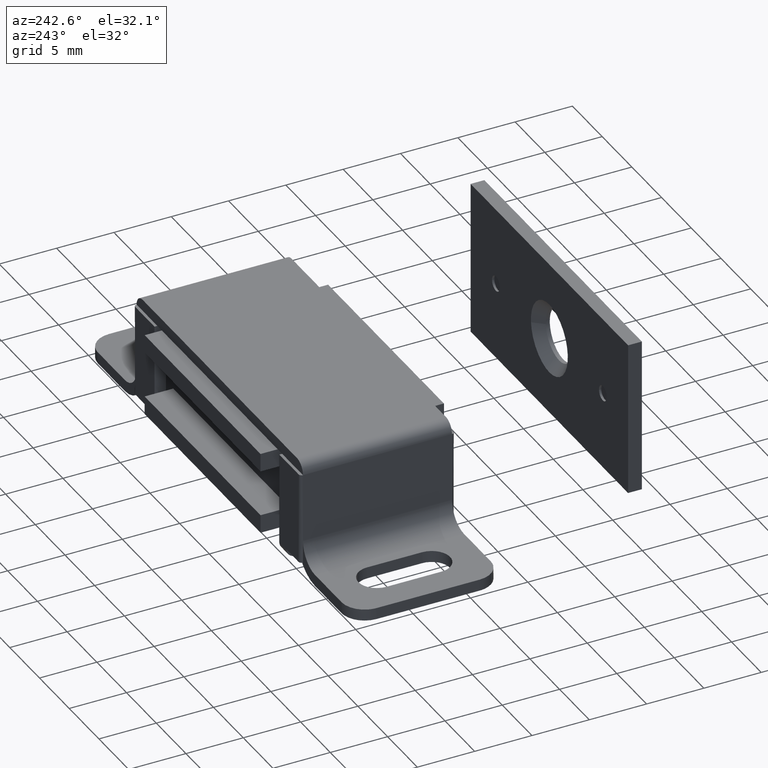
[diagram: clean part render]
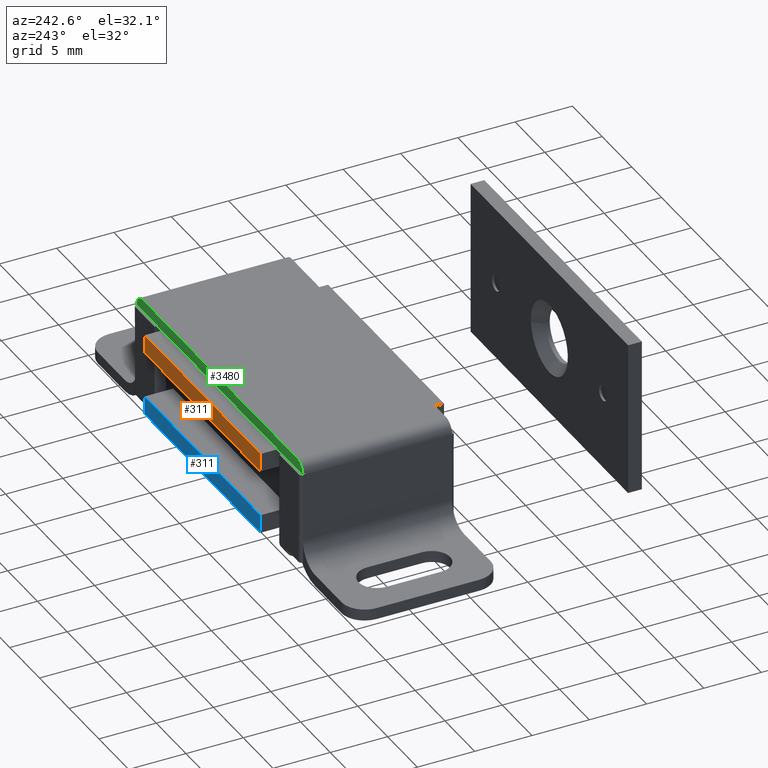
[diagram: same view with three faces highlighted in distinct colors, each labeled with its STEP entity id]
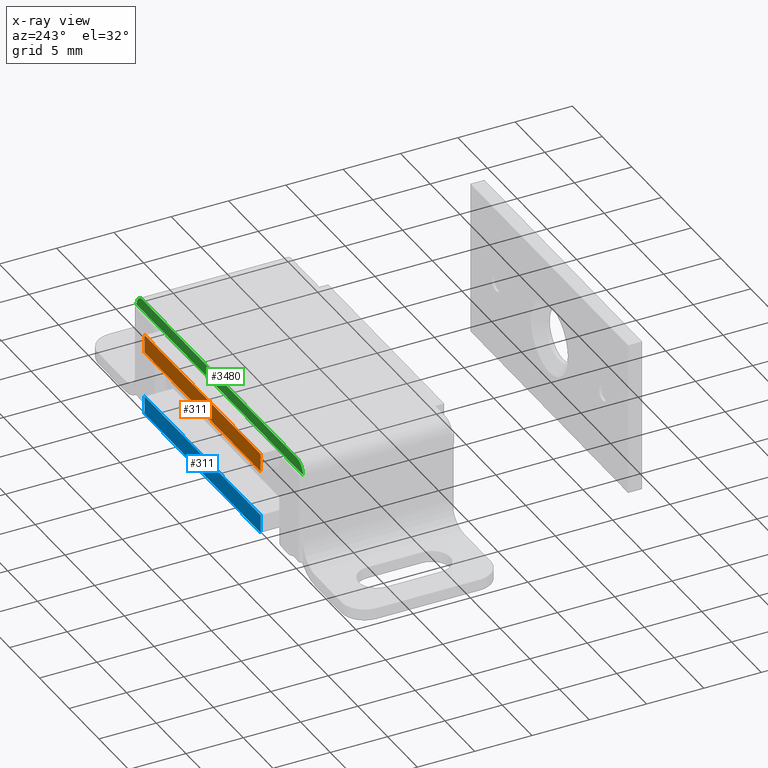
[diagram: x-ray of the same camera — body ghosted, the three highlighted faces saturated]
A machine part, auxiliary view with three faces highlighted in distinct colors.
The next image is the same camera in x-ray (body ghosted, the three faces saturated) — at least one of them is partly hidden behind the body in this view.
Their STEP definitions:

[orange] entity #311 — the highlighted face is a freeform B-spline surface patch.
#93=CARTESIAN_POINT('',(-9.750000000000000,8.0,1.800003000000050));
#94=VERTEX_POINT('',#93);
#100=CARTESIAN_POINT('',(9.750000000000000,8.0,1.800003000000050));
#101=VERTEX_POINT('',#100);
#102=CARTESIAN_POINT('',(-9.750000000000000,8.0,1.800003000000050));
#103=CARTESIAN_POINT('',(9.750000000000000,8.0,1.800003000000050));
#104=QUASI_UNIFORM_CURVE('',1,(#102,#103),.UNSPECIFIED.,.F.,.U.);
#105=EDGE_CURVE('',#94,#101,#104,.T.);
#171=CARTESIAN_POINT('',(9.750000000000000,8.0,3.400009000000035));
#172=VERTEX_POINT('',#171);
#178=CARTESIAN_POINT('',(-9.750000000000000,8.0,3.400009000000035));
#179=VERTEX_POINT('',#178);
#180=CARTESIAN_POINT('',(-9.750000000000000,8.0,3.400009000000035));
#181=CARTESIAN_POINT('',(9.750000000000000,8.0,3.400009000000035));
#182=QUASI_UNIFORM_CURVE('',1,(#180,#181),.UNSPECIFIED.,.F.,.U.);
#183=EDGE_CURVE('',#179,#172,#182,.T.);
#286=CARTESIAN_POINT('',(9.750000000000000,8.0,3.400009000000035));
#287=CARTESIAN_POINT('',(9.750000000000000,8.0,1.800003000000050));
#288=QUASI_UNIFORM_CURVE('',1,(#286,#287),.UNSPECIFIED.,.F.,.U.);
#289=EDGE_CURVE('',#172,#101,#288,.T.);
#296=CARTESIAN_POINT('',(-10.724024962205220,8.0,1.720082754176653));
#297=CARTESIAN_POINT('',(-10.724024962205220,8.0,3.479929217213096));
#298=CARTESIAN_POINT('',(10.724025485235970,8.0,1.720082754176653));
#299=CARTESIAN_POINT('',(10.724025485235970,8.0,3.479929217213096));
#300=B_SPLINE_SURFACE_WITH_KNOTS('',1,1,((#296,#298),(#297,#299)),.UNSPECIFIED.,.F.,.F.,.U.,(2,2),(2,2),(0.041708361393958,0.958291623704881),(0.0,21.448050447441190),.UNSPECIFIED.);
#301=ORIENTED_EDGE('',*,*,#105,.F.);
#302=CARTESIAN_POINT('',(-9.750000000000000,8.0,3.400009000000035));
#303=CARTESIAN_POINT('',(-9.750000000000000,8.0,1.800003000000050));
#304=QUASI_UNIFORM_CURVE('',1,(#302,#303),.UNSPECIFIED.,.F.,.U.);
#305=EDGE_CURVE('',#179,#94,#304,.T.);
#306=ORIENTED_EDGE('',*,*,#305,.F.);
#307=ORIENTED_EDGE('',*,*,#183,.T.);
#308=ORIENTED_EDGE('',*,*,#289,.T.);
#309=EDGE_LOOP('',(#301,#306,#307,#308));
#310=FACE_OUTER_BOUND('',#309,.T.);
#311=ADVANCED_FACE('',(#310),#300,.T.);

[blue] entity #311 — the highlighted face is a freeform B-spline surface patch.
#93=CARTESIAN_POINT('',(-9.750000000000000,8.0,1.800003000000050));
#94=VERTEX_POINT('',#93);
#100=CARTESIAN_POINT('',(9.750000000000000,8.0,1.800003000000050));
#101=VERTEX_POINT('',#100);
#102=CARTESIAN_POINT('',(-9.750000000000000,8.0,1.800003000000050));
#103=CARTESIAN_POINT('',(9.750000000000000,8.0,1.800003000000050));
#104=QUASI_UNIFORM_CURVE('',1,(#102,#103),.UNSPECIFIED.,.F.,.U.);
#105=EDGE_CURVE('',#94,#101,#104,.T.);
#171=CARTESIAN_POINT('',(9.750000000000000,8.0,3.400009000000035));
#172=VERTEX_POINT('',#171);
#178=CARTESIAN_POINT('',(-9.750000000000000,8.0,3.400009000000035));
#179=VERTEX_POINT('',#178);
#180=CARTESIAN_POINT('',(-9.750000000000000,8.0,3.400009000000035));
#181=CARTESIAN_POINT('',(9.750000000000000,8.0,3.400009000000035));
#182=QUASI_UNIFORM_CURVE('',1,(#180,#181),.UNSPECIFIED.,.F.,.U.);
#183=EDGE_CURVE('',#179,#172,#182,.T.);
#286=CARTESIAN_POINT('',(9.750000000000000,8.0,3.400009000000035));
#287=CARTESIAN_POINT('',(9.750000000000000,8.0,1.800003000000050));
#288=QUASI_UNIFORM_CURVE('',1,(#286,#287),.UNSPECIFIED.,.F.,.U.);
#289=EDGE_CURVE('',#172,#101,#288,.T.);
#296=CARTESIAN_POINT('',(-10.724024962205220,8.0,1.720082754176653));
#297=CARTESIAN_POINT('',(-10.724024962205220,8.0,3.479929217213096));
#298=CARTESIAN_POINT('',(10.724025485235970,8.0,1.720082754176653));
#299=CARTESIAN_POINT('',(10.724025485235970,8.0,3.479929217213096));
#300=B_SPLINE_SURFACE_WITH_KNOTS('',1,1,((#296,#298),(#297,#299)),.UNSPECIFIED.,.F.,.F.,.U.,(2,2),(2,2),(0.041708361393958,0.958291623704881),(0.0,21.448050447441190),.UNSPECIFIED.);
#301=ORIENTED_EDGE('',*,*,#105,.F.);
#302=CARTESIAN_POINT('',(-9.750000000000000,8.0,3.400009000000035));
#303=CARTESIAN_POINT('',(-9.750000000000000,8.0,1.800003000000050));
#304=QUASI_UNIFORM_CURVE('',1,(#302,#303),.UNSPECIFIED.,.F.,.U.);
#305=EDGE_CURVE('',#179,#94,#304,.T.);
#306=ORIENTED_EDGE('',*,*,#305,.F.);
#307=ORIENTED_EDGE('',*,*,#183,.T.);
#308=ORIENTED_EDGE('',*,*,#289,.T.);
#309=EDGE_LOOP('',(#301,#306,#307,#308));
#310=FACE_OUTER_BOUND('',#309,.T.);
#311=ADVANCED_FACE('',(#310),#300,.T.);

[green] entity #3480 — the highlighted face is a freeform B-spline surface patch.
#2114=CARTESIAN_POINT('',(-14.0,6.500000000000000,9.0));
#2115=VERTEX_POINT('',#2114);
#2177=CARTESIAN_POINT('',(14.0,6.500000000000000,9.0));
#2178=VERTEX_POINT('',#2177);
#3126=CARTESIAN_POINT('',(-13.0,6.500000000000000,10.0));
#3127=VERTEX_POINT('',#3126);
#3133=CARTESIAN_POINT('',(-14.0,6.500000000000000,9.0));
#3134=CARTESIAN_POINT('',(-13.999999999999998,6.500000000000001,9.999999999999998));
#3135=CARTESIAN_POINT('',(-13.0,6.500000000000000,9.999999999999998));
#3143=(BOUNDED_CURVE()B_SPLINE_CURVE(2,(#3133,#3134,#3135),.UNSPECIFIED.,.F.,.U.)CURVE()GEOMETRIC_REPRESENTATION_ITEM()QUASI_UNIFORM_CURVE()RATIONAL_B_SPLINE_CURVE((1.0,0.707106781186548,1.0))REPRESENTATION_ITEM(''));
#3144=EDGE_CURVE('',#2115,#3127,#3143,.T.);
#3188=CARTESIAN_POINT('',(13.0,6.500000000000000,10.0));
#3189=VERTEX_POINT('',#3188);
#3190=CARTESIAN_POINT('',(13.0,6.500000000000000,9.999999999999998));
#3191=CARTESIAN_POINT('',(13.999999999999998,6.500000000000001,9.999999999999998));
#3192=CARTESIAN_POINT('',(14.0,6.500000000000000,9.0));
#3200=(BOUNDED_CURVE()B_SPLINE_CURVE(2,(#3190,#3191,#3192),.UNSPECIFIED.,.F.,.U.)CURVE()GEOMETRIC_REPRESENTATION_ITEM()QUASI_UNIFORM_CURVE()RATIONAL_B_SPLINE_CURVE((1.0,0.707106781186548,1.0))REPRESENTATION_ITEM(''));
#3201=EDGE_CURVE('',#3189,#2178,#3200,.T.);
#3224=CARTESIAN_POINT('',(-10.500000000000000,6.500000000000000,9.0));
#3225=VERTEX_POINT('',#3224);
#3226=CARTESIAN_POINT('',(-10.500000000000000,6.500000000000000,9.0));
#3227=CARTESIAN_POINT('',(-14.0,6.500000000000000,9.0));
#3228=QUASI_UNIFORM_CURVE('',1,(#3226,#3227),.UNSPECIFIED.,.F.,.U.);
#3229=EDGE_CURVE('',#3225,#2115,#3228,.T.);
#3436=CARTESIAN_POINT('',(10.500000000000000,6.500000000000000,9.0));
#3437=VERTEX_POINT('',#3436);
#3438=CARTESIAN_POINT('',(10.500000000000000,6.500000000000000,9.0));
#3439=CARTESIAN_POINT('',(14.0,6.500000000000000,9.0));
#3440=QUASI_UNIFORM_CURVE('',1,(#3438,#3439),.UNSPECIFIED.,.F.,.U.);
#3441=EDGE_CURVE('',#3437,#2178,#3440,.T.);
#3459=CARTESIAN_POINT('',(-15.398599945730570,6.500000000000000,10.049949998061811));
#3460=CARTESIAN_POINT('',(-15.398599945730570,6.500000000000000,8.950049975116102));
#3461=CARTESIAN_POINT('',(15.398600696749090,6.500000000000000,10.049949998061811));
#3462=CARTESIAN_POINT('',(15.398600696749090,6.500000000000000,8.950049975116102));
#3463=B_SPLINE_SURFACE_WITH_KNOTS('',1,1,((#3459,#3461),(#3460,#3462)),.UNSPECIFIED.,.F.,.F.,.U.,(2,2),(2,2),(0.041708334948495,0.958291687403247),(0.0,30.797200642479659),.UNSPECIFIED.);
#3464=CARTESIAN_POINT('',(-13.0,6.500000000000000,10.0));
#3465=CARTESIAN_POINT('',(13.0,6.500000000000000,10.0));
#3466=QUASI_UNIFORM_CURVE('',1,(#3464,#3465),.UNSPECIFIED.,.F.,.U.);
#3467=EDGE_CURVE('',#3127,#3189,#3466,.T.);
#3468=ORIENTED_EDGE('',*,*,#3467,.T.);
#3469=ORIENTED_EDGE('',*,*,#3201,.T.);
#3470=ORIENTED_EDGE('',*,*,#3441,.F.);
#3471=CARTESIAN_POINT('',(10.500000000000000,6.500000000000000,9.0));
#3472=CARTESIAN_POINT('',(-10.500000000000000,6.500000000000000,9.0));
#3473=QUASI_UNIFORM_CURVE('',1,(#3471,#3472),.UNSPECIFIED.,.F.,.U.);
#3474=EDGE_CURVE('',#3437,#3225,#3473,.T.);
#3475=ORIENTED_EDGE('',*,*,#3474,.T.);
#3476=ORIENTED_EDGE('',*,*,#3229,.T.);
#3477=ORIENTED_EDGE('',*,*,#3144,.T.);
#3478=EDGE_LOOP('',(#3468,#3469,#3470,#3475,#3476,#3477));
#3479=FACE_OUTER_BOUND('',#3478,.T.);
#3480=ADVANCED_FACE('',(#3479),#3463,.F.);